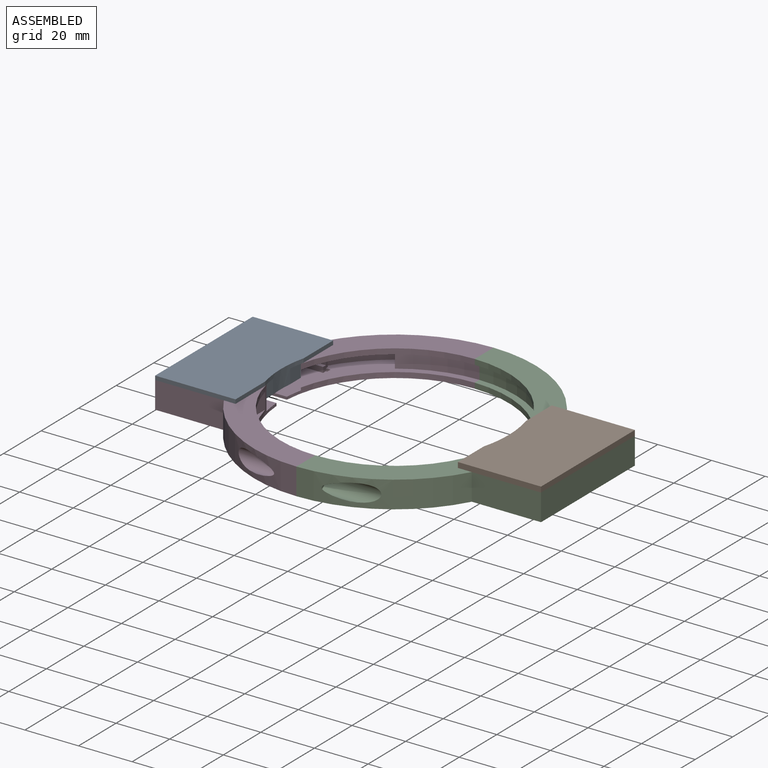
[diagram: assembled view]
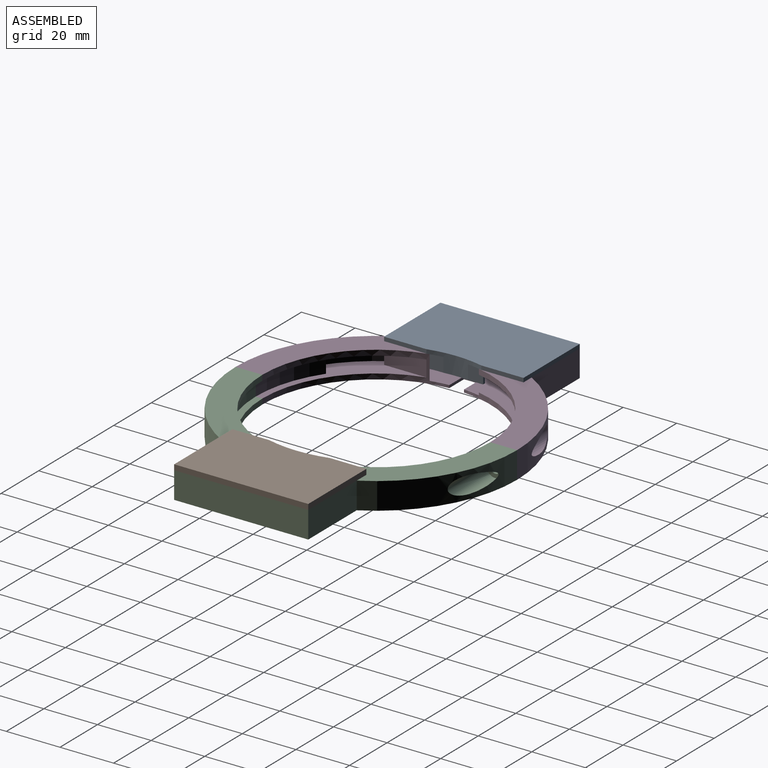
[diagram: assembled view, second angle]
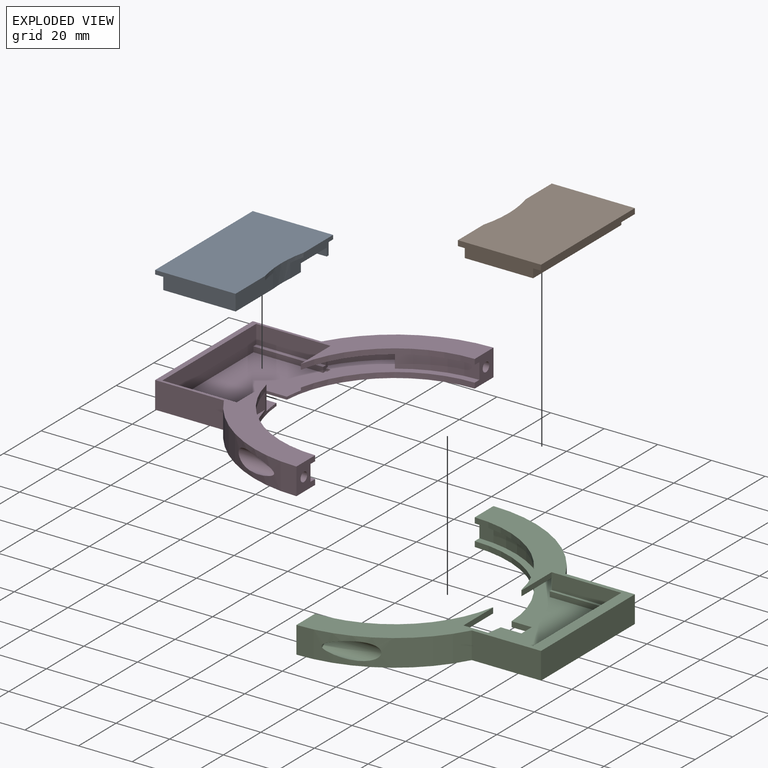
[diagram: exploded view]
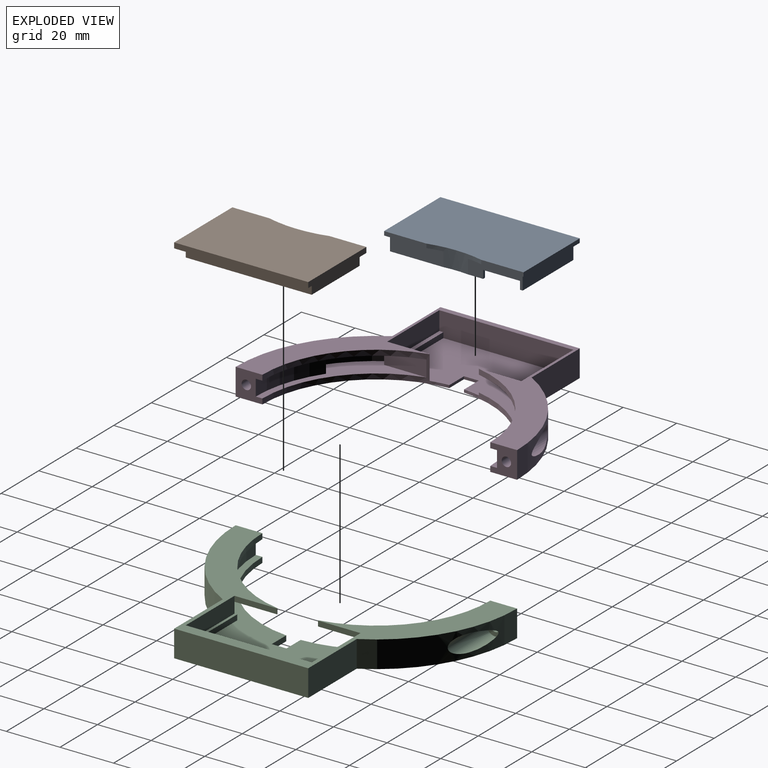
[diagram: exploded view, second angle]
ASSEMBLY  parts=4 mates=3
PART A: 28 faces, bbox 30x52x6.8 mm
  f0: plane 20.4x5.3mm, normal (-1,0,0), area 66.8mm2, adj f3,f11,f15,f16,f25,f26,f27
  f1: plane 15.77x1.5mm, normal (-1,0,0), area 23.7mm2, adj f3,f4,f8,f25
  f2: plane 19.9x5.3mm, normal (-1,0,0), area 105.5mm2, adj f3,f9,f16,f25
  f3: plane 52x30mm, normal (0,0,1), area 207.9mm2, adj f0,f1,f2,f4,f5,f6,f7,f9
  f4: plane 30x1.5mm, normal (0,-1,0), area 45mm2, adj f1,f3,f5,f8
  f5: plane 52x1.5mm, normal (1,0,0), area 78mm2, adj f3,f4,f6,f8
  f6: plane 30x1.5mm, normal (0,1,0), area 45mm2, adj f3,f5,f7,f8
  f7: plane 15.77x1.5mm, normal (-1,0,0), area 23.7mm2, adj f3,f6,f8,f25
  f8: plane 52x30mm, normal (0,0,-1), area 1542.9mm2, adj f1,f4,f5,f6,f7,f25
  f9: plane 27x5.3mm, normal (0,-1,0), area 143.1mm2, adj f2,f3,f10,f16
  f10: plane 49.5x5.3mm, normal (1,0,0), area 262.3mm2, adj f3,f9,f11,f16
  f11: plane 27x5.3mm, normal (0,1,0), area 143.1mm2, adj f0,f3,f10,f16
  f12: plane 47.5x5.3mm, normal (-1,0,0), area 251.7mm2, adj f13,f15,f16,f17
  f13: plane 25x5.3mm, normal (0,1,0), area 132.5mm2, adj f12,f14,f16,f17
  f14: plane 47.5x5.3mm, normal (1,0,0), area 210.4mm2, adj f13,f15,f16,f17,f26,f27
  f15: plane 26x5.3mm, normal (0,-1,0), area 135.5mm2, adj f0,f12,f14,f16,f17,f26
  f16: plane 49.5x27mm, normal (0,0,1), area 133.7mm2, adj f0,f2,f9,f10,f11,f12,f13,f14
  f17: plane 47.5x25mm, normal (0,0,1), area 1075mm2, adj f12,f13,f14,f15,f18,f19,f20,f21
  f18: plane 3x0.5mm, normal (0,-1,0), area 1.5mm2, adj f17,f19,f23,f24
  f19: plane 24x0.5mm, normal (1,0,0), area 12mm2, adj f17,f18,f20,f24
  f20: plane 16.5x0.5mm, normal (0,1,0), area 8.3mm2, adj f17,f19,f21,f24
  f21: plane 3x0.5mm, normal (-1,0,0), area 1.5mm2, adj f17,f20,f22,f24
  f22: plane 13.5x0.5mm, normal (0,-1,0), area 6.8mm2, adj f17,f21,f23,f24
  f23: plane 21x0.5mm, normal (-1,0,0), area 10.5mm2, adj f17,f18,f22,f24
  f24: plane 24x16.5mm, normal (0,0,1), area 112.5mm2, adj f18,f19,f20,f21,f22,f23
  f25: cylinder r=42.5mm len=20.46mm, axis (0,0,1), area 79.9mm2, adj f0,f1,f2,f3,f7,f8,f16
  f26: plane 13.77x1mm, normal (0,0,1), area 13.8mm2, adj f0,f14,f15,f27
  f27: plane 3x1mm, normal (0,1,0), area 3mm2, adj f0,f14,f16,f26
PART B: 42 faces, bbox 31x50x6.2 mm
  f0: plane 47x4.2mm, normal (1,0,0), area 172.4mm2, adj f3,f9,f10,f14,f16,f40,f41
  f1: plane 13.71x2mm, normal (1,0,0), area 27.4mm2, adj f3,f4,f8,f39
  f2: plane 45x23.5mm, normal (0,0,1), area 897.7mm2, adj f11,f12,f13,f14,f20,f21,f22,f23
  f3: plane 50x31mm, normal (0,0,1), area 328.8mm2, adj f0,f1,f4,f5,f6,f7,f9,f10
  f4: plane 31x2mm, normal (0,-1,0), area 62mm2, adj f1,f3,f7,f8
  f5: plane 13.71x2mm, normal (1,0,0), area 27.4mm2, adj f3,f6,f8,f39
  f6: plane 31x2mm, normal (0,1,0), area 62mm2, adj f3,f5,f7,f8
  f7: plane 50x2mm, normal (-1,0,0), area 100mm2, adj f3,f4,f6,f8
  f8: plane 50x31mm, normal (0,0,-1), area 1527.3mm2, adj f1,f4,f5,f6,f7,f39
  f9: plane 25.5x4.2mm, normal (0,-1,0), area 107.1mm2, adj f0,f3,f15,f16
  f10: plane 25.5x4.2mm, normal (0,1,0), area 107.1mm2, adj f0,f3,f15,f16
  f11: plane 45x4.2mm, normal (-1,0,0), area 164mm2, adj f2,f12,f14,f16,f40,f41
  f12: plane 23.5x4.2mm, normal (0,1,0), area 98.7mm2, adj f2,f11,f13,f16
  f13: plane 45x4.2mm, normal (1,0,0), area 189mm2, adj f2,f12,f14,f16
  f14: plane 24.5x4.2mm, normal (0,-1,0), area 101.2mm2, adj f0,f2,f11,f13,f16,f41
  f15: plane 47x4.2mm, normal (-1,0,0), area 197.4mm2, adj f3,f9,f10,f16
  f16: plane 47x25.5mm, normal (0,0,1), area 131mm2, adj f0,f9,f10,f11,f12,f13,f14,f15
  f17: plane 5.66x0.5mm, normal (0,1,0), area 2.8mm2, adj f31,f32,f33,f34
  f18: plane 2.67x0.5mm, normal (1,0,0), area 1.3mm2, adj f31,f32,f34,f35
  f19: plane 6.66x0.5mm, normal (0,-1,0), area 3.3mm2, adj f29,f31,f32,f35
  f20: plane 6.86x0.5mm, normal (-1,0,0), area 3.4mm2, adj f2,f31,f36,f37
  f21: plane 9.77x0.5mm, normal (0,-1,0), area 4.9mm2, adj f2,f31,f37,f38
  f22: plane 18.8x0.5mm, normal (1,0,0), area 9.4mm2, adj f2,f23,f31,f38
  f23: plane 2.34x0.5mm, normal (0,1,0), area 1.2mm2, adj f2,f22,f24,f31
  f24: plane 10.95x0.5mm, normal (-1,0,0), area 5.5mm2, adj f2,f23,f25,f31
  f25: plane 3.83x0.5mm, normal (0,1,0), area 1.9mm2, adj f2,f24,f26,f31
  f26: plane 10.95x4.99mm, normal (0.91,0.42,0), area 6mm2, adj f2,f25,f27,f31
  f27: plane 2.8x0.5mm, normal (0,1,0), area 1.4mm2, adj f2,f26,f28,f31
  f28: plane 10.95x4.99mm, normal (-0.91,-0.42,0), area 6mm2, adj f2,f27,f30,f31
  f29: plane 3.67x0.5mm, normal (-1,0,0), area 1.8mm2, adj f19,f31,f32,f33
  f30: plane 1.8x0.5mm, normal (0,1,0), area 0.9mm2, adj f2,f28,f31,f36
  f31: plane 19.8x13.96mm, normal (0,0,1), area 124.7mm2, adj f17,f18,f19,f20,f21,f22,f23,f24
  f32: plane 7.66x4.67mm, normal (0,0,1), area 35.1mm2, adj f17,f18,f19,f29,f33,f34,f35
  f33: cylinder r=1mm len=1mm, axis (0,0,-1), area 0.8mm2, adj f17,f29,f31,f32
  f34: cylinder r=1mm len=1mm, axis (0,0,1), area 0.8mm2, adj f17,f18,f31,f32
  f35: cylinder r=1mm len=1mm, axis (0,0,1), area 0.8mm2, adj f18,f19,f31,f32
  f36: cylinder r=1mm len=1mm, axis (0,0,-1), area 0.8mm2, adj f2,f20,f30,f31
  f37: cylinder r=1mm len=1mm, axis (0,0,-1), area 0.8mm2, adj f2,f20,f21,f31
  f38: cylinder r=1mm len=1mm, axis (0,0,1), area 0.8mm2, adj f2,f21,f22,f31
  f39: cylinder r=43.25mm len=22.58mm, axis (0,0,1), area 45.7mm2, adj f1,f3,f5,f8
  f40: plane 2.5x1mm, normal (0,1,0), area 2.5mm2, adj f0,f11,f16,f41
  f41: plane 10x1mm, normal (0,0,1), area 10mm2, adj f0,f11,f14,f40
PART C: 46 faces, bbox 72x105x10 mm
  f0: cylinder r=1.75mm len=5.9mm, axis (1,0,0), area 64.9mm2, adj f20,f45
  f1: cylinder r=1.75mm len=5.9mm, axis (1,0,0), area 64.9mm2, adj f18,f43
  f2: plane 90x68mm, normal (0,0,1), area 1704.3mm2, adj f5,f6,f8,f9,f12,f13,f16,f18
  f3: plane 45.03x37.41mm, normal (0,0,-1), area 290mm2, adj f12,f13,f19,f20,f22,f27,f32,f40
  f4: plane 26x6mm, normal (0,1,0), area 156mm2, adj f5,f11,f12,f27,f37
  f5: plane 47x8mm, normal (-1,0,0), area 372mm2, adj f2,f4,f11,f28,f34,f35,f36,f37
  f6: cylinder r=42.5mm len=42.47mm, axis (0,0,1), area 130.5mm2, adj f2,f7,f18,f31
  f7: plane 105x72mm, normal (0,0,-1), area 2528.6mm2, adj f6,f9,f14,f17,f18,f20,f23,f24
  f8: plane 6x2.5mm, normal (-1,0,0), area 11mm2, adj f2,f15,f21,f28,f34,f35
  f9: cylinder r=42.5mm len=42.31mm, axis (0,0,1), area 125.5mm2, adj f2,f7,f20,f29
  f10: cylinder r=42.5mm len=41.8mm, axis (0,0,1), area 118.1mm2, adj f11,f15,f18,f33
  f11: plane 105x72mm, normal (0,0,1), area 1352.3mm2, adj f4,f5,f10,f14,f17,f18,f19,f20
  f12: plane 6x2.5mm, normal (-1,0,0), area 11mm2, adj f2,f3,f4,f22,f36,f37
  f13: cylinder r=51.5mm len=17.19mm, axis (0,0,1), area 140mm2, adj f2,f3,f22,f41
  f14: cylinder r=52.5mm len=46.17mm, axis (0,0,1), area 470.6mm2, adj f7,f11,f20,f23,f44
  f15: plane 45.03x37.41mm, normal (0,0,-1), area 290mm2, adj f8,f10,f16,f18,f21,f26,f33,f38
  f16: cylinder r=51.5mm len=17.19mm, axis (0,0,1), area 140mm2, adj f2,f15,f21,f39
  f17: cylinder r=52.5mm len=46.17mm, axis (0,0,1), area 470.8mm2, adj f7,f11,f18,f24,f42
  f18: plane 10x10mm, normal (-1,0,0), area 75.4mm2, adj f1,f2,f6,f7,f10,f11,f15,f17
  f19: cylinder r=42.5mm len=41.8mm, axis (0,0,1), area 118.1mm2, adj f3,f11,f20,f32
  f20: plane 10x10mm, normal (-1,0,0), area 75.4mm2, adj f0,f2,f3,f7,f9,f11,f14,f19
  f21: plane 6x3.03mm, normal (0,1,0), area 18.1mm2, adj f2,f8,f15,f16
  f22: plane 6x3.03mm, normal (0,-1,0), area 18.1mm2, adj f2,f3,f12,f13
  f23: plane 25.83x10mm, normal (0,-1,0), area 258.3mm2, adj f7,f11,f14,f25
  f24: plane 25.83x10mm, normal (0,1,0), area 258.3mm2, adj f7,f11,f17,f25
  f25: plane 50x10mm, normal (1,0,0), area 500mm2, adj f7,f11,f23,f24
  f26: plane 15.81x2mm, normal (1,0,0), area 31.6mm2, adj f11,f15,f28,f33
  f27: plane 15.81x2mm, normal (1,0,0), area 31.6mm2, adj f3,f4,f11,f32
  f28: plane 26x6mm, normal (0,-1,0), area 156mm2, adj f5,f8,f11,f26,f35
  f29: plane 7.69x2mm, normal (0,1,0), area 15.4mm2, adj f2,f7,f9,f30
  f30: plane 5.5x2mm, normal (-1,0,0), area 11mm2, adj f2,f7,f29,f31
  f31: plane 7.53x2mm, normal (0,-1,0), area 15.1mm2, adj f2,f6,f7,f30
  f32: cylinder r=0.1mm len=2mm, axis (0,0,1), area 0.6mm2, adj f3,f11,f19,f27
  f33: cylinder r=0.1mm len=2mm, axis (0,0,1), area 0.6mm2, adj f10,f11,f15,f26
  f34: plane 26x2mm, normal (0,-1,0), area 52mm2, adj f2,f5,f8,f35
  f35: plane 26x1mm, normal (0,0,1), area 26mm2, adj f5,f8,f28,f34
  f36: plane 26x2mm, normal (0,1,0), area 52mm2, adj f2,f5,f12,f37
  f37: plane 26x1mm, normal (0,0,1), area 26mm2, adj f4,f5,f12,f36
  f38: cylinder r=45mm len=25.81mm, axis (0,0,1), area 164.9mm2, adj f2,f15,f18,f39
  f39: plane 6x5.32mm, normal (0.82,-0.57,0), area 39mm2, adj f2,f15,f16,f38
  f40: cylinder r=45mm len=25.81mm, axis (0,0,1), area 164.9mm2, adj f2,f3,f20,f41
  f41: plane 6x5.32mm, normal (0.82,0.57,0), area 39mm2, adj f2,f3,f13,f40
  f42: cylinder r=3.25mm len=20.72mm, axis (1,0,0), area 267.3mm2, adj f17,f43
  f43: plane 6.5x6.5mm, normal (1,0,0), area 23.6mm2, adj f1,f42
  f44: cylinder r=3.25mm len=20.72mm, axis (1,0,0), area 268.3mm2, adj f14,f45
  f45: plane 6.5x6.5mm, normal (1,0,0), area 23.6mm2, adj f0,f44
PART D: 48 faces, bbox 71.3x105x10 mm
  f0: cylinder r=42.5mm len=42.43mm, axis (0,0,1), area 243.4mm2, adj f1,f6,f10,f11,f13,f16,f19,f28
  f1: plane 50x27.75mm, normal (0,0,1), area 1254.5mm2, adj f0,f2,f3,f8,f9,f27,f28,f29
  f2: plane 50x9mm, normal (1,0,0), area 444mm2, adj f1,f10,f26,f27,f40,f41,f43,f44
  f3: plane 1.75x1mm, normal (0,-1,0), area 1.7mm2, adj f1,f9,f15,f29
  f4: cylinder r=52.5mm len=45.61mm, axis (0,0,1), area 459.3mm2, adj f10,f16,f19,f22,f36
  f5: cylinder r=52.5mm len=45.61mm, axis (0,0,1), area 459.2mm2, adj f10,f18,f19,f23,f38
  f6: plane 44.46x34.77mm, normal (0,0,1), area 274.2mm2, adj f0,f11,f12,f16,f21,f32,f33
  f7: plane 44.46x35.84mm, normal (0,0,-1), area 280mm2, adj f14,f17,f18,f20,f25,f26,f29,f30
  f8: cylinder r=42.5mm len=42.39mm, axis (0,0,1), area 121.3mm2, adj f1,f9,f15,f18,f19,f46
  f9: plane 15.84x1mm, normal (-1,0,0), area 15.8mm2, adj f1,f3,f8,f15
  f10: plane 105x71.25mm, normal (0,0,1), area 1208.1mm2, adj f0,f2,f4,f5,f16,f17,f18,f22
  f11: plane 15.77x6mm, normal (1,0,0), area 94.6mm2, adj f0,f6,f13,f21
  f12: cylinder r=51.5mm len=16.19mm, axis (0,0,1), area 133.1mm2, adj f6,f13,f21,f32
  f13: plane 44.46x34.77mm, normal (0,0,-1), area 274.2mm2, adj f0,f11,f12,f16,f21,f32,f33
  f14: cylinder r=51.5mm len=16.19mm, axis (0,0,1), area 133.1mm2, adj f7,f15,f20,f30
  f15: plane 44.46x35.84mm, normal (0,0,1), area 280mm2, adj f3,f8,f9,f14,f18,f20,f29,f30
  f16: plane 10x10mm, normal (1,0,0), area 75.4mm2, adj f0,f4,f6,f10,f13,f19,f33,f35
  f17: cylinder r=42.5mm len=41.5mm, axis (0,0,1), area 115mm2, adj f7,f10,f18,f25
  f18: plane 10x10mm, normal (1,0,0), area 75.4mm2, adj f5,f7,f8,f10,f15,f17,f19,f31
  f19: plane 105x71.25mm, normal (0,0,-1), area 2540.6mm2, adj f0,f4,f5,f8,f16,f18,f22,f23
  f20: plane 6x1.21mm, normal (0,1,0), area 7.2mm2, adj f7,f14,f15,f29
  f21: plane 6x3.21mm, normal (0,-1,0), area 19.2mm2, adj f6,f11,f12,f13
  f22: plane 25.64x10mm, normal (0,-1,0), area 256.4mm2, adj f4,f10,f19,f24
  f23: plane 25.64x10mm, normal (0,1,0), area 256.4mm2, adj f5,f10,f19,f24
  f24: plane 52x10mm, normal (-1,0,0), area 520mm2, adj f10,f19,f22,f23
  f25: plane 15.84x2mm, normal (-1,0,0), area 31.7mm2, adj f7,f10,f17,f26
  f26: plane 27.75x7mm, normal (0,-1,0), area 185.5mm2, adj f2,f7,f10,f25,f29,f41
  f27: plane 27.75x9mm, normal (0,1,0), area 197.8mm2, adj f1,f2,f10,f28,f42,f44
  f28: plane 15.84x9mm, normal (-1,0,0), area 142.5mm2, adj f0,f1,f10,f27
  f29: plane 7x2.5mm, normal (1,0,0), area 9mm2, adj f1,f3,f7,f15,f20,f26,f40,f41
  f30: plane 6x5.32mm, normal (-0.82,-0.57,0), area 39mm2, adj f7,f14,f15,f31
  f31: cylinder r=45mm len=25.81mm, axis (0,0,1), area 164.9mm2, adj f7,f15,f18,f30
  f32: plane 6x5.32mm, normal (-0.82,0.57,0), area 39mm2, adj f6,f12,f13,f33
  f33: cylinder r=45mm len=25.81mm, axis (0,0,1), area 164.9mm2, adj f6,f13,f16,f32
  f34: cylinder r=1.75mm len=5.9mm, axis (-1,0,0), area 64.9mm2, adj f18,f39
  f35: cylinder r=1.75mm len=5.9mm, axis (-1,0,0), area 64.9mm2, adj f16,f37
  f36: cylinder r=3.25mm len=20.72mm, axis (1,0,0), area 268.6mm2, adj f4,f37
  f37: plane 6.5x6.5mm, normal (-1,0,0), area 23.6mm2, adj f35,f36
  f38: cylinder r=3.25mm len=20.72mm, axis (1,0,0), area 267.4mm2, adj f5,f39
  f39: plane 6.5x6.5mm, normal (-1,0,0), area 23.6mm2, adj f34,f38
  f40: plane 26x2mm, normal (0,-1,0), area 52mm2, adj f1,f2,f29,f41
  f41: plane 26x1.5mm, normal (0,0,1), area 39mm2, adj f2,f26,f29,f40
  f42: plane 2x1.5mm, normal (1,0,0), area 3mm2, adj f1,f27,f43,f44
  f43: plane 26x2mm, normal (0,1,0), area 52mm2, adj f1,f2,f42,f44
  f44: plane 26x1.5mm, normal (0,0,1), area 39mm2, adj f2,f27,f42,f43
  f45: plane 7.82x1mm, normal (0,1,0), area 7.8mm2, adj f0,f1,f19,f47
  f46: plane 7.86x1mm, normal (0,-1,0), area 7.9mm2, adj f1,f8,f19,f47
  f47: plane 5.5x1mm, normal (1,0,0), area 5.5mm2, adj f1,f19,f45,f46
PLACE A rot(axis=(0,1,0),180deg) t=(-56.25,0,11.5)mm
PLACE B rot(axis=(0,1,0),180deg) t=(56.5,0,12)mm
PLACE C at identity
PLACE D at identity
MATE fastened C.f1 <-> D.f34  axis (1,0,0) through (0,48.5,5)mm
MATE fastened D.f10 <-> A.f3  axis (0,0,1) through (-69.25,25,10)mm
MATE fastened B.f3 <-> C.f11  axis (0,0,-1) through (68,23.5,10)mm
